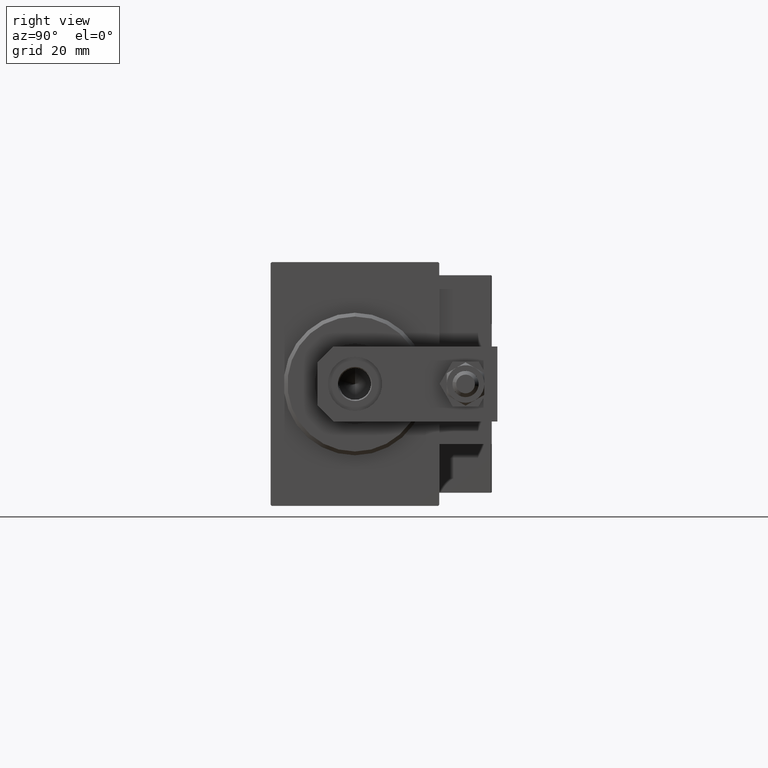
[diagram: clean part render]
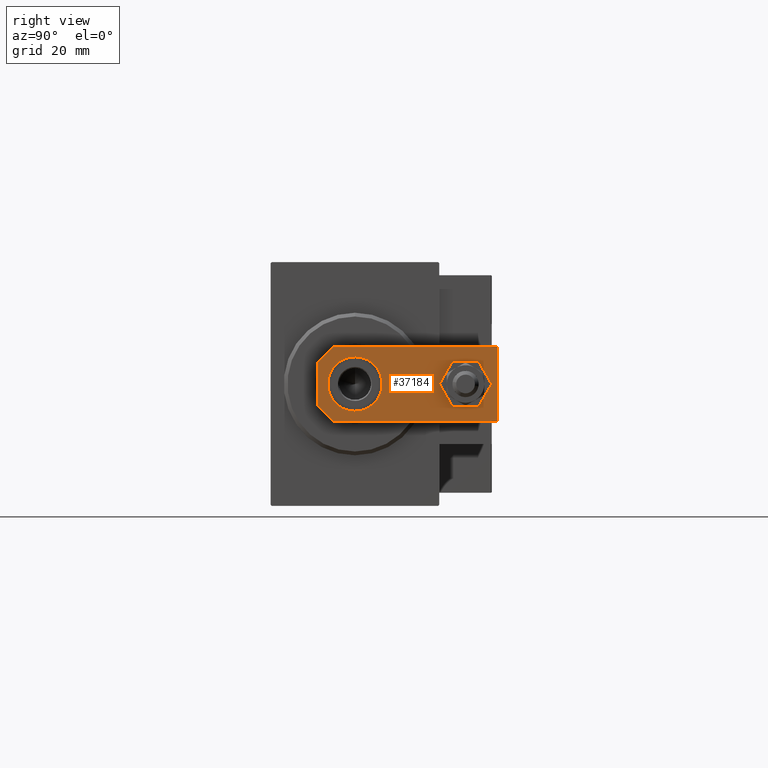
[diagram: same view with one face highlighted and labeled with its STEP entity id]
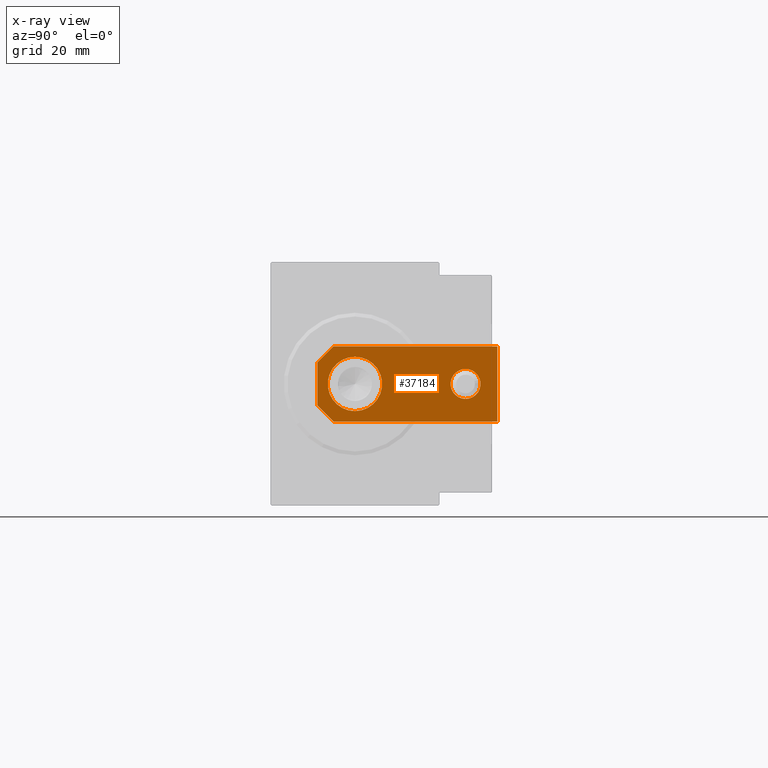
[diagram: x-ray of the same camera — body ghosted, the highlighted face saturated]
A machine part, right view. The second image highlights one B-rep face of the part: STEP entity #37184.
The next image is the same camera in x-ray: the body ghosted, the highlighted face saturated — about 0% of this face is hidden behind the body in this view.
In plain terms, the highlighted planar face has unit normal (1, 0, -0).
Its self-contained STEP definition (entity closure, byte-faithful):
#2260 = CARTESIAN_POINT ( 'NONE',  ( -9.629649721936179265E-32, 10.00000000000000178, 6.000000000000000000 ) ) ;
#2337 = CARTESIAN_POINT ( 'NONE',  ( 7.250000000000000000, 10.00000000000000355, 6.000000000000000000 ) ) ;
#2590 = VECTOR ( 'NONE', #6631, 1000.000000000000000 ) ;
#2815 = EDGE_CURVE ( 'NONE', #35202, #25093, #43514, .T. ) ;
#3653 = CARTESIAN_POINT ( 'NONE',  ( -1.432611055310774642E-16, 39.50000000000000000, 6.000000000000000000 ) ) ;
#3880 = ORIENTED_EDGE ( 'NONE', *, *, #25960, .T. ) ;
#4286 = PLANE ( 'NONE',  #42317 ) ;
#5131 = ORIENTED_EDGE ( 'NONE', *, *, #5894, .F. ) ;
#5894 = EDGE_CURVE ( 'NONE', #25093, #35202, #36347, .T. ) ;
#6631 = DIRECTION ( 'NONE',  ( -1.000000000000000000, 0.000000000000000000, 0.000000000000000000 ) ) ;
#8312 = CARTESIAN_POINT ( 'NONE',  ( 0.000000000000000000, 0.000000000000000000, 6.000000000000000000 ) ) ;
#8485 = DIRECTION ( 'NONE',  ( 1.000000000000000000, 0.000000000000000000, 0.000000000000000000 ) ) ;
#8570 = DIRECTION ( 'NONE',  ( -0.000000000000000000, 0.000000000000000000, 1.000000000000000000 ) ) ;
#8995 = ORIENTED_EDGE ( 'NONE', *, *, #34732, .T. ) ;
#9921 = ORIENTED_EDGE ( 'NONE', *, *, #24532, .T. ) ;
#10155 = CARTESIAN_POINT ( 'NONE',  ( 10.00000000000000178, 48.00000000000000000, 6.000000000000000000 ) ) ;
#10294 = EDGE_CURVE ( 'NONE', #29945, #26036, #23962, .T. ) ;
#10315 = VECTOR ( 'NONE', #35323, 1000.000000000000114 ) ;
#11602 = AXIS2_PLACEMENT_3D ( 'NONE', #47330, #39518, #8485 ) ;
#12091 = DIRECTION ( 'NONE',  ( 0.000000000000000000, 0.000000000000000000, 1.000000000000000000 ) ) ;
#14919 = LINE ( 'NONE', #10155, #2590 ) ;
#15494 = DIRECTION ( 'NONE',  ( 0.000000000000000000, 0.000000000000000000, 1.000000000000000000 ) ) ;
#15627 = CARTESIAN_POINT ( 'NONE',  ( -10.00000000000000000, 48.00000000000000000, 6.000000000000000000 ) ) ;
#16634 = CARTESIAN_POINT ( 'NONE',  ( -9.629649721936179265E-32, 10.00000000000000178, 6.000000000000000000 ) ) ;
#16889 = CARTESIAN_POINT ( 'NONE',  ( -4.000000000000000888, 39.50000000000000000, 6.000000000000000000 ) ) ;
#17513 = CARTESIAN_POINT ( 'NONE',  ( 10.00000000000000533, 0.000000000000000000, 6.000000000000000000 ) ) ;
#17725 = ORIENTED_EDGE ( 'NONE', *, *, #10294, .T. ) ;
#18268 = VECTOR ( 'NONE', #36071, 999.9999999999998863 ) ;
#18490 = CARTESIAN_POINT ( 'NONE',  ( -10.00000000000000000, 48.00000000000000000, 6.000000000000000000 ) ) ;
#19385 = ORIENTED_EDGE ( 'NONE', *, *, #30528, .F. ) ;
#19936 = CARTESIAN_POINT ( 'NONE',  ( 2.879999999999984350, -2.879999999999999005, 6.000000000000000000 ) ) ;
#21254 = VERTEX_POINT ( 'NONE', #25374 ) ;
#21293 = LINE ( 'NONE', #17513, #22121 ) ;
#22121 = VECTOR ( 'NONE', #32893, 1000.000000000000000 ) ;
#22333 = LINE ( 'NONE', #41015, #33064 ) ;
#23018 = CIRCLE ( 'NONE', #25435, 4.000000000000000888 ) ;
#23359 = AXIS2_PLACEMENT_3D ( 'NONE', #2260, #40851, #37554 ) ;
#23962 = LINE ( 'NONE', #32290, #18268 ) ;
#24143 = VERTEX_POINT ( 'NONE', #18490 ) ;
#24194 = DIRECTION ( 'NONE',  ( 1.000000000000000000, 0.000000000000000000, 0.000000000000000000 ) ) ;
#24532 = EDGE_CURVE ( 'NONE', #46743, #47879, #21293, .T. ) ;
#25031 = AXIS2_PLACEMENT_3D ( 'NONE', #16634, #12091, #24194 ) ;
#25093 = VERTEX_POINT ( 'NONE', #2337 ) ;
#25323 = CIRCLE ( 'NONE', #11602, 4.000000000000000888 ) ;
#25374 = CARTESIAN_POINT ( 'NONE',  ( 5.759999999999998010, 0.000000000000000000, 6.000000000000000000 ) ) ;
#25435 = AXIS2_PLACEMENT_3D ( 'NONE', #3653, #15494, #42243 ) ;
#25531 = ORIENTED_EDGE ( 'NONE', *, *, #42072, .T. ) ;
#25960 = EDGE_CURVE ( 'NONE', #47879, #24143, #14919, .T. ) ;
#26036 = VERTEX_POINT ( 'NONE', #33854 ) ;
#27813 = EDGE_LOOP ( 'NONE', ( #40756, #5131 ) ) ;
#28664 = CARTESIAN_POINT ( 'NONE',  ( -7.250000000000000000, 10.00000000000000178, 6.000000000000000000 ) ) ;
#29621 = VERTEX_POINT ( 'NONE', #37518 ) ;
#29945 = VERTEX_POINT ( 'NONE', #49303 ) ;
#30528 = EDGE_CURVE ( 'NONE', #37261, #29621, #25323, .T. ) ;
#31069 = VECTOR ( 'NONE', #38348, 1000.000000000000000 ) ;
#31530 = LINE ( 'NONE', #19936, #10315 ) ;
#32027 = FACE_BOUND ( 'NONE', #27813, .T. ) ;
#32290 = CARTESIAN_POINT ( 'NONE',  ( -2.880000000000006999, -2.879999999999998561, 6.000000000000000000 ) ) ;
#32893 = DIRECTION ( 'NONE',  ( -7.228014483236695816E-17, 1.000000000000000000, 0.000000000000000000 ) ) ;
#33064 = VECTOR ( 'NONE', #45290, 1000.000000000000000 ) ;
#33854 = CARTESIAN_POINT ( 'NONE',  ( -5.759999999999997122, 0.000000000000000000, 6.000000000000000000 ) ) ;
#34099 = EDGE_CURVE ( 'NONE', #29621, #37261, #23018, .T. ) ;
#34549 = LINE ( 'NONE', #15627, #31069 ) ;
#34664 = ORIENTED_EDGE ( 'NONE', *, *, #49433, .T. ) ;
#34732 = EDGE_CURVE ( 'NONE', #24143, #29945, #34549, .T. ) ;
#35202 = VERTEX_POINT ( 'NONE', #28664 ) ;
#35323 = DIRECTION ( 'NONE',  ( 0.7071067811865492381, 0.7071067811865457964, -0.000000000000000000 ) ) ;
#36071 = DIRECTION ( 'NONE',  ( 0.7071067811865464625, -0.7071067811865486830, 0.000000000000000000 ) ) ;
#36347 = CIRCLE ( 'NONE', #25031, 7.250000000000000000 ) ;
#37184 = ADVANCED_FACE ( 'NONE', ( #42875, #43129, #32027 ), #4286, .T. ) ;
#37261 = VERTEX_POINT ( 'NONE', #16889 ) ;
#37518 = CARTESIAN_POINT ( 'NONE',  ( 4.000000000000000888, 39.50000000000000000, 6.000000000000000000 ) ) ;
#37554 = DIRECTION ( 'NONE',  ( 1.000000000000000000, 0.000000000000000000, 0.000000000000000000 ) ) ;
#38348 = DIRECTION ( 'NONE',  ( -1.084202172485504434E-16, -1.000000000000000000, 0.000000000000000000 ) ) ;
#39095 = DIRECTION ( 'NONE',  ( 1.000000000000000000, 0.000000000000000000, 0.000000000000000000 ) ) ;
#39518 = DIRECTION ( 'NONE',  ( 0.000000000000000000, 0.000000000000000000, 1.000000000000000000 ) ) ;
#39640 = ORIENTED_EDGE ( 'NONE', *, *, #34099, .F. ) ;
#40756 = ORIENTED_EDGE ( 'NONE', *, *, #2815, .F. ) ;
#40851 = DIRECTION ( 'NONE',  ( 0.000000000000000000, 0.000000000000000000, 1.000000000000000000 ) ) ;
#41015 = CARTESIAN_POINT ( 'NONE',  ( -10.00000000000000533, 0.000000000000000000, 6.000000000000000000 ) ) ;
#42072 = EDGE_CURVE ( 'NONE', #21254, #46743, #31530, .T. ) ;
#42243 = DIRECTION ( 'NONE',  ( 1.000000000000000000, 0.000000000000000000, 0.000000000000000000 ) ) ;
#42317 = AXIS2_PLACEMENT_3D ( 'NONE', #8312, #8570, #39095 ) ;
#42875 = FACE_BOUND ( 'NONE', #46348, .T. ) ;
#43129 = FACE_OUTER_BOUND ( 'NONE', #45434, .T. ) ;
#43514 = CIRCLE ( 'NONE', #23359, 7.250000000000000000 ) ;
#44363 = CARTESIAN_POINT ( 'NONE',  ( 10.00000000000000178, 48.00000000000000000, 6.000000000000000000 ) ) ;
#45290 = DIRECTION ( 'NONE',  ( 1.000000000000000000, 0.000000000000000000, 0.000000000000000000 ) ) ;
#45434 = EDGE_LOOP ( 'NONE', ( #8995, #17725, #34664, #25531, #9921, #3880 ) ) ;
#46348 = EDGE_LOOP ( 'NONE', ( #19385, #39640 ) ) ;
#46743 = VERTEX_POINT ( 'NONE', #49695 ) ;
#47330 = CARTESIAN_POINT ( 'NONE',  ( -1.432611055310774642E-16, 39.50000000000000000, 6.000000000000000000 ) ) ;
#47879 = VERTEX_POINT ( 'NONE', #44363 ) ;
#49303 = CARTESIAN_POINT ( 'NONE',  ( -10.00000000000000533, 4.240000000000021529, 6.000000000000000000 ) ) ;
#49433 = EDGE_CURVE ( 'NONE', #26036, #21254, #22333, .T. ) ;
#49695 = CARTESIAN_POINT ( 'NONE',  ( 10.00000000000000533, 4.239999999999986890, 6.000000000000000000 ) ) ;